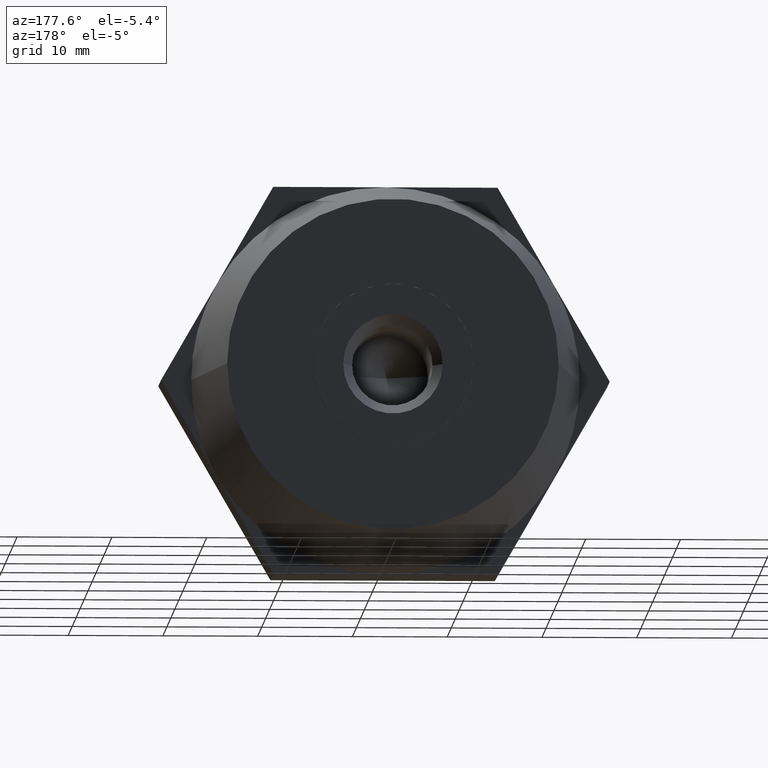
[diagram: clean part render]
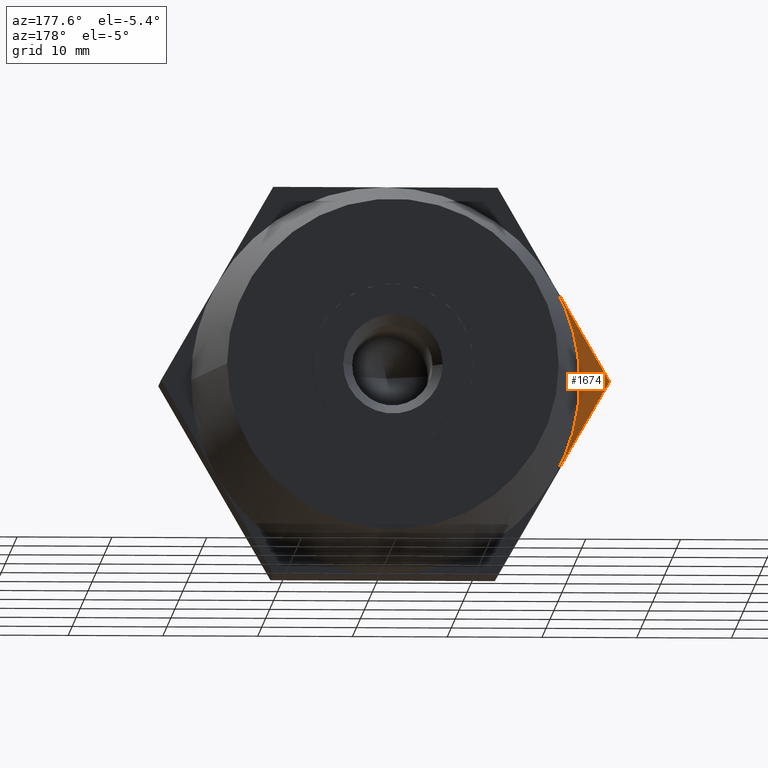
[diagram: same view with one face highlighted and labeled with its STEP entity id]
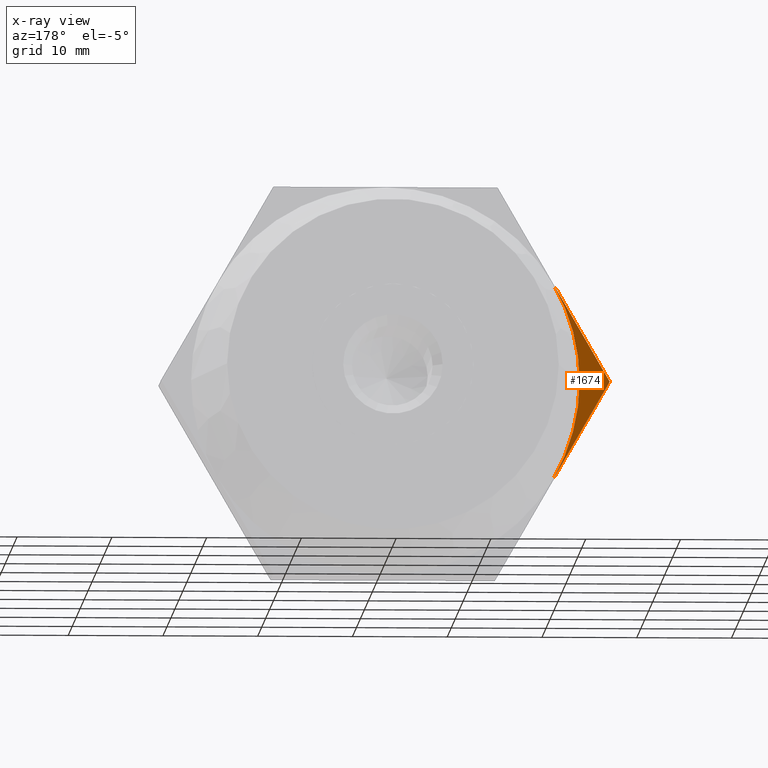
[diagram: x-ray of the same camera — body ghosted, the highlighted face saturated]
A machine part, auxiliary view. The second image highlights one B-rep face of the part: STEP entity #1674.
The next image is the same camera in x-ray: the body ghosted, the highlighted face saturated — about 0% of this face is hidden behind the body in this view.
In plain terms, the highlighted planar face has unit normal (0, 1, 0).
Its self-contained STEP definition (entity closure, byte-faithful):
#82 = CARTESIAN_POINT ( 'NONE',  ( 0.0000000000000000000, 3.500000000000000000, 0.0000000000000000000 ) ) ;
#245 = EDGE_LOOP ( 'NONE', ( #2971, #3168, #1824, #2266 ) ) ;
#346 = VERTEX_POINT ( 'NONE', #2438 ) ;
#358 = FACE_OUTER_BOUND ( 'NONE', #245, .T. ) ;
#364 = AXIS2_PLACEMENT_3D ( 'NONE', #2299, #3881, #2314 ) ;
#563 = EDGE_CURVE ( 'NONE', #3715, #958, #1025, .T. ) ;
#626 = CIRCLE ( 'NONE', #1491, 20.50000000000000000 ) ;
#666 = CARTESIAN_POINT ( 'NONE',  ( 2.326828918379969800E-015, 3.500000000000000000, 0.0000000000000000000 ) ) ;
#957 = CARTESIAN_POINT ( 'NONE',  ( -23.67136103677464800, 3.500000000000000000, -6.892897232898371300E-017 ) ) ;
#958 = VERTEX_POINT ( 'NONE', #1907 ) ;
#1025 = CIRCLE ( 'NONE', #364, 20.50000000000000000 ) ;
#1283 = DIRECTION ( 'NONE',  ( -0.4999999999999998900, 0.0000000000000000000, 0.8660254037844387100 ) ) ;
#1491 = AXIS2_PLACEMENT_3D ( 'NONE', #666, #1616, #2220 ) ;
#1579 = DIRECTION ( 'NONE',  ( 0.0000000000000000000, 0.0000000000000000000, 1.000000000000000000 ) ) ;
#1616 = DIRECTION ( 'NONE',  ( -1.224646799147353900E-016, 1.000000000000000000, 0.0000000000000000000 ) ) ;
#1674 = ADVANCED_FACE ( 'NONE', ( #358 ), #3724, .T. ) ;
#1824 = ORIENTED_EDGE ( 'NONE', *, *, #3230, .T. ) ;
#1865 = DIRECTION ( 'NONE',  ( 0.0000000000000000000, 1.000000000000000000, 0.0000000000000000000 ) ) ;
#1907 = CARTESIAN_POINT ( 'NONE',  ( -17.75352077758099900, 3.500000000000000000, 10.25000000000000000 ) ) ;
#1963 = VECTOR ( 'NONE', #1283, 1000.000000000000000 ) ;
#1966 = LINE ( 'NONE', #2554, #2877 ) ;
#2122 = EDGE_CURVE ( 'NONE', #346, #3159, #3162, .T. ) ;
#2146 = EDGE_CURVE ( 'NONE', #346, #3715, #626, .T. ) ;
#2220 = DIRECTION ( 'NONE',  ( -1.000000000000000000, -1.269309860470834500E-016, 0.0000000000000000000 ) ) ;
#2266 = ORIENTED_EDGE ( 'NONE', *, *, #563, .F. ) ;
#2299 = CARTESIAN_POINT ( 'NONE',  ( 2.326828918379969800E-015, 3.500000000000000000, 0.0000000000000000000 ) ) ;
#2314 = DIRECTION ( 'NONE',  ( -1.000000000000000000, -1.269309860470834500E-016, 0.0000000000000000000 ) ) ;
#2438 = CARTESIAN_POINT ( 'NONE',  ( -17.75352077758099900, 3.500000000000000000, -10.25000000000000000 ) ) ;
#2554 = CARTESIAN_POINT ( 'NONE',  ( -23.67136103677464800, 3.500000000000000000, -6.892897232898371300E-017 ) ) ;
#2877 = VECTOR ( 'NONE', #2910, 1000.000000000000000 ) ;
#2910 = DIRECTION ( 'NONE',  ( 0.4999999999999998900, 0.0000000000000000000, 0.8660254037844387100 ) ) ;
#2918 = AXIS2_PLACEMENT_3D ( 'NONE', #82, #1865, #1579 ) ;
#2971 = ORIENTED_EDGE ( 'NONE', *, *, #2146, .F. ) ;
#3159 = VERTEX_POINT ( 'NONE', #957 ) ;
#3162 = LINE ( 'NONE', #3418, #1963 ) ;
#3168 = ORIENTED_EDGE ( 'NONE', *, *, #2122, .T. ) ;
#3230 = EDGE_CURVE ( 'NONE', #3159, #958, #1966, .T. ) ;
#3418 = CARTESIAN_POINT ( 'NONE',  ( -11.83568051838732100, 3.500000000000000000, -20.50000000000000000 ) ) ;
#3650 = CARTESIAN_POINT ( 'NONE',  ( -20.49999999999998900, 3.499999999999996400, 2.510525938252073300E-015 ) ) ;
#3715 = VERTEX_POINT ( 'NONE', #3650 ) ;
#3724 = PLANE ( 'NONE',  #2918 ) ;
#3881 = DIRECTION ( 'NONE',  ( -1.224646799147353900E-016, 1.000000000000000000, 0.0000000000000000000 ) ) ;